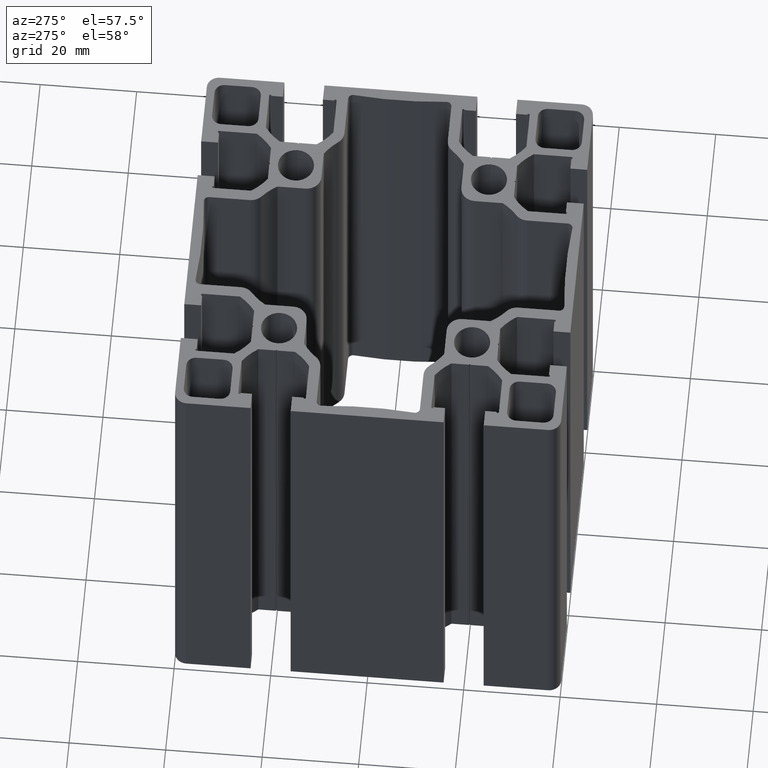
[diagram: clean part render]
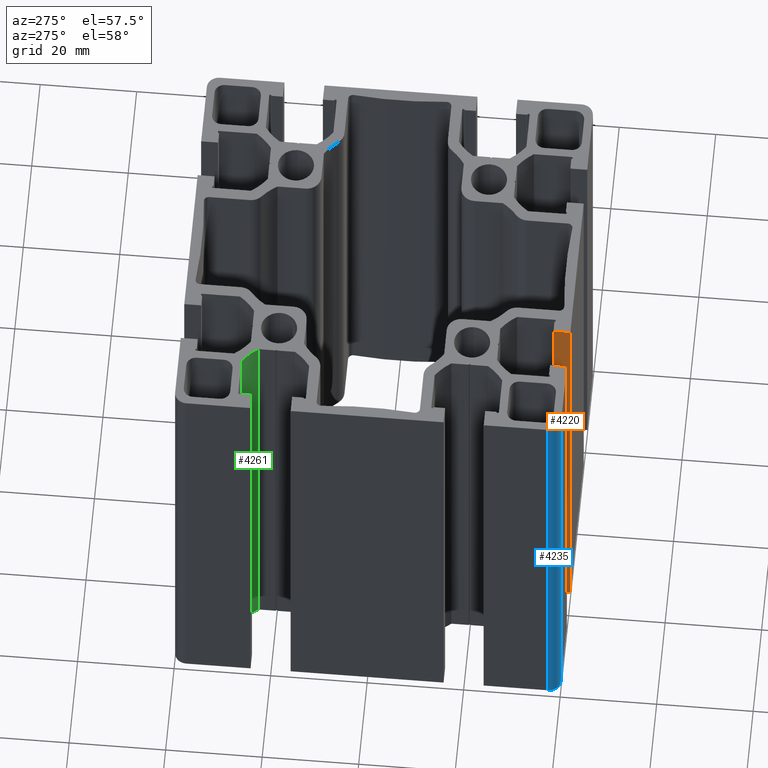
[diagram: same view with three faces highlighted in distinct colors, each labeled with its STEP entity id]
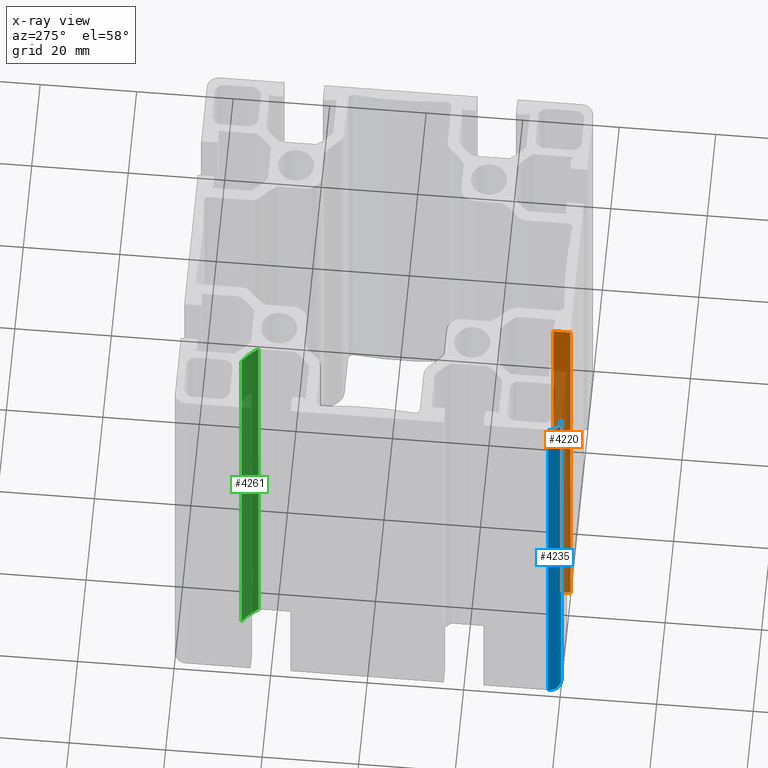
[diagram: x-ray of the same camera — body ghosted, the three highlighted faces saturated]
A machine part, auxiliary view with three faces highlighted in distinct colors.
The next image is the same camera in x-ray (body ghosted, the three faces saturated) — at least one of them is partly hidden behind the body in this view.
Their STEP definitions:

[orange] entity #4220 — the highlighted planar face has unit normal (-1, 0, 0).
#89=PLANE('',#4554);
#274=FACE_OUTER_BOUND('',#492,.T.);
#492=EDGE_LOOP('',(#3193,#3194,#3195,#3196));
#824=LINE('',#6618,#1280);
#825=LINE('',#6621,#1281);
#826=LINE('',#6623,#1282);
#827=LINE('',#6624,#1283);
#1280=VECTOR('',#5386,100.);
#1281=VECTOR('',#5389,3.49999999999994);
#1282=VECTOR('',#5390,3.49999999999994);
#1283=VECTOR('',#5391,100.);
#1923=VERTEX_POINT('',#6614);
#1924=VERTEX_POINT('',#6616);
#1925=VERTEX_POINT('',#6620);
#1926=VERTEX_POINT('',#6622);
#2454=EDGE_CURVE('',#1923,#1924,#824,.T.);
#2455=EDGE_CURVE('',#1925,#1923,#825,.T.);
#2456=EDGE_CURVE('',#1926,#1924,#826,.T.);
#2457=EDGE_CURVE('',#1925,#1926,#827,.T.);
#3193=ORIENTED_EDGE('',*,*,#2455,.T.);
#3194=ORIENTED_EDGE('',*,*,#2454,.T.);
#3195=ORIENTED_EDGE('',*,*,#2456,.F.);
#3196=ORIENTED_EDGE('',*,*,#2457,.F.);
#4220=ADVANCED_FACE('',(#274),#89,.T.);
#4554=AXIS2_PLACEMENT_3D('',#6619,#5387,#5388);
#5386=DIRECTION('',(0.,0.,1.));
#5387=DIRECTION('center_axis',(-1.,0.,0.));
#5388=DIRECTION('ref_axis',(0.,-1.,0.));
#5389=DIRECTION('',(0.,-1.,0.));
#5390=DIRECTION('',(0.,-1.,0.));
#5391=DIRECTION('',(0.,0.,1.));
#6614=CARTESIAN_POINT('',(-15.85,-40.,0.));
#6616=CARTESIAN_POINT('',(-15.85,-40.,100.));
#6618=CARTESIAN_POINT('',(-15.85,-40.,0.));
#6619=CARTESIAN_POINT('Origin',(-15.85,-36.5,0.));
#6620=CARTESIAN_POINT('',(-15.85,-36.5,0.));
#6621=CARTESIAN_POINT('',(-15.85,-36.5,0.));
#6622=CARTESIAN_POINT('',(-15.85,-36.5,100.));
#6623=CARTESIAN_POINT('',(-15.85,-36.5,100.));
#6624=CARTESIAN_POINT('',(-15.85,-36.5,0.));

[blue] entity #4235 — the highlighted cylindrical surface (edge-blend (fillet) strip) has radius 2.5 mm, axis along (0, 0, 1).
#289=FACE_OUTER_BOUND('',#507,.T.);
#507=EDGE_LOOP('',(#3253,#3254,#3255,#3256));
#861=LINE('',#6708,#1317);
#862=LINE('',#6714,#1318);
#1317=VECTOR('',#5469,100.);
#1318=VECTOR('',#5476,100.);
#1651=CIRCLE('',#4578,2.49999999999996);
#1652=CIRCLE('',#4579,2.49999999999996);
#1953=VERTEX_POINT('',#6704);
#1954=VERTEX_POINT('',#6706);
#1955=VERTEX_POINT('',#6710);
#1956=VERTEX_POINT('',#6712);
#2499=EDGE_CURVE('',#1953,#1954,#861,.T.);
#2500=EDGE_CURVE('',#1955,#1953,#1651,.T.);
#2501=EDGE_CURVE('',#1956,#1954,#1652,.T.);
#2502=EDGE_CURVE('',#1955,#1956,#862,.T.);
#3253=ORIENTED_EDGE('',*,*,#2500,.T.);
#3254=ORIENTED_EDGE('',*,*,#2499,.T.);
#3255=ORIENTED_EDGE('',*,*,#2501,.F.);
#3256=ORIENTED_EDGE('',*,*,#2502,.F.);
#4084=CYLINDRICAL_SURFACE('',#4577,2.49999999999996);
#4235=ADVANCED_FACE('',(#289),#4084,.T.);
#4577=AXIS2_PLACEMENT_3D('',#6709,#5470,#5471);
#4578=AXIS2_PLACEMENT_3D('',#6711,#5472,#5473);
#4579=AXIS2_PLACEMENT_3D('',#6713,#5474,#5475);
#5469=DIRECTION('',(0.,0.,1.));
#5470=DIRECTION('center_axis',(0.,0.,1.));
#5471=DIRECTION('ref_axis',(-1.,0.,0.));
#5472=DIRECTION('center_axis',(0.,0.,1.));
#5473=DIRECTION('ref_axis',(-1.,0.,0.));
#5474=DIRECTION('center_axis',(0.,0.,1.));
#5475=DIRECTION('ref_axis',(-1.,0.,0.));
#5476=DIRECTION('',(0.,0.,1.));
#6704=CARTESIAN_POINT('',(-37.5,-40.0000000000001,0.));
#6706=CARTESIAN_POINT('',(-37.5,-40.0000000000001,100.));
#6708=CARTESIAN_POINT('',(-37.5,-40.0000000000001,0.));
#6709=CARTESIAN_POINT('Origin',(-37.5,-37.5,0.));
#6710=CARTESIAN_POINT('',(-40.,-37.5,0.));
#6711=CARTESIAN_POINT('Origin',(-37.5,-37.5,0.));
#6712=CARTESIAN_POINT('',(-40.,-37.5,100.));
#6713=CARTESIAN_POINT('Origin',(-37.5,-37.5,100.));
#6714=CARTESIAN_POINT('',(-40.,-37.5,0.));

[green] entity #4261 — the highlighted cylindrical surface (partial cylindrical patch) has radius 12.9 mm, axis along (0, 0, 1).
#315=FACE_OUTER_BOUND('',#533,.T.);
#533=EDGE_LOOP('',(#3357,#3358,#3359,#3360));
#925=LINE('',#6864,#1381);
#926=LINE('',#6870,#1382);
#1381=VECTOR('',#5613,100.);
#1382=VECTOR('',#5620,100.);
#1665=CIRCLE('',#4618,12.8999999999991);
#1666=CIRCLE('',#4619,12.8999999999991);
#2005=VERTEX_POINT('',#6860);
#2006=VERTEX_POINT('',#6862);
#2007=VERTEX_POINT('',#6866);
#2008=VERTEX_POINT('',#6868);
#2577=EDGE_CURVE('',#2005,#2006,#925,.T.);
#2578=EDGE_CURVE('',#2007,#2005,#1665,.T.);
#2579=EDGE_CURVE('',#2008,#2006,#1666,.T.);
#2580=EDGE_CURVE('',#2007,#2008,#926,.T.);
#3357=ORIENTED_EDGE('',*,*,#2578,.T.);
#3358=ORIENTED_EDGE('',*,*,#2577,.T.);
#3359=ORIENTED_EDGE('',*,*,#2579,.F.);
#3360=ORIENTED_EDGE('',*,*,#2580,.F.);
#4091=CYLINDRICAL_SURFACE('',#4617,12.8999999999991);
#4261=ADVANCED_FACE('',(#315),#4091,.F.);
#4617=AXIS2_PLACEMENT_3D('',#6865,#5614,#5615);
#4618=AXIS2_PLACEMENT_3D('',#6867,#5616,#5617);
#4619=AXIS2_PLACEMENT_3D('',#6869,#5618,#5619);
#5613=DIRECTION('',(0.,0.,1.));
#5614=DIRECTION('center_axis',(0.,0.,1.));
#5615=DIRECTION('ref_axis',(-0.820174893106147,-0.572112877602244,0.));
#5616=DIRECTION('center_axis',(0.,0.,-1.));
#5617=DIRECTION('ref_axis',(-0.820174893106147,-0.572112877602244,0.));
#5618=DIRECTION('center_axis',(0.,0.,-1.));
#5619=DIRECTION('ref_axis',(-0.820174893106147,-0.572112877602244,0.));
#5620=DIRECTION('',(0.,0.,1.));
#6860=CARTESIAN_POINT('',(-25.5,23.8,0.));
#6862=CARTESIAN_POINT('',(-25.5,23.8,100.));
#6864=CARTESIAN_POINT('',(-25.5,23.8,0.));
#6865=CARTESIAN_POINT('Origin',(-36.0802561210685,16.4197438789316,0.));
#6866=CARTESIAN_POINT('',(-28.7,27.,0.));
#6867=CARTESIAN_POINT('Origin',(-36.0802561210685,16.4197438789316,0.));
#6868=CARTESIAN_POINT('',(-28.7,27.,100.));
#6869=CARTESIAN_POINT('Origin',(-36.0802561210685,16.4197438789316,100.));
#6870=CARTESIAN_POINT('',(-28.7,27.,0.));